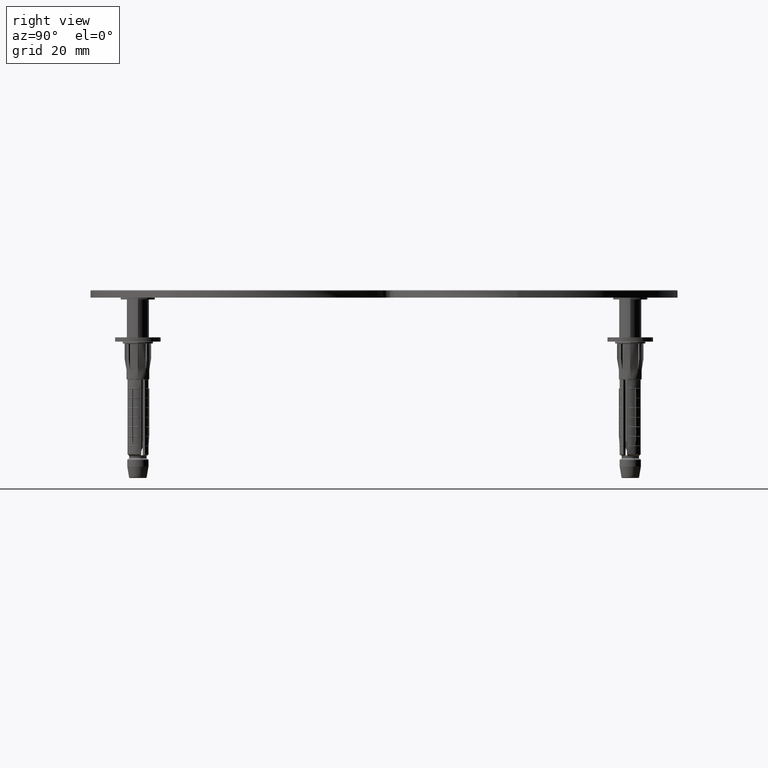
[diagram: clean part render]
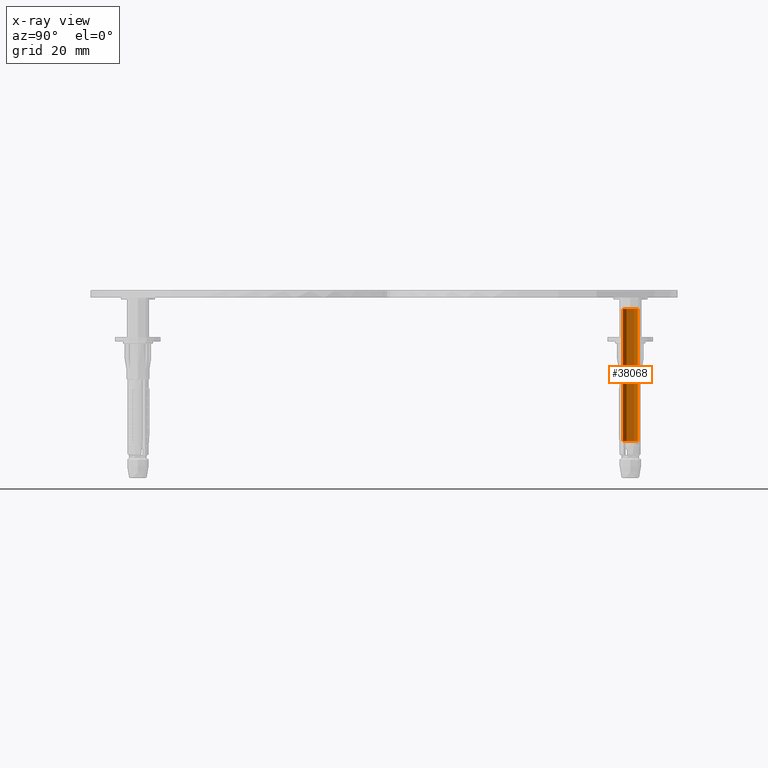
[diagram: x-ray — body ghosted, one internal face saturated and labeled with its STEP entity id]
A machine part, right view, then the same camera in x-ray: the body is ghosted and one INTERNAL B-rep face — a face not visible from any outside direction — is saturated and labeled: STEP entity #38068.
In plain terms, the highlighted cylindrical surface (edge-blend (fillet) strip) has radius 2 mm, axis along (0, 0, -1).
Its self-contained STEP definition (entity closure, byte-faithful):
#716 = ORIENTED_EDGE ( 'NONE', *, *, #30858, .F. ) ;
#2610 = EDGE_CURVE ( 'NONE', #13324, #20582, #31544, .T. ) ;
#5374 = CIRCLE ( 'NONE', #8484, 1.999999999999995781 ) ;
#5933 = EDGE_CURVE ( 'NONE', #16065, #14078, #36685, .T. ) ;
#6712 = DIRECTION ( 'NONE',  ( 1.314919014442269209E-41, 1.000000000000000000, 0.000000000000000000 ) ) ;
#7012 = DIRECTION ( 'NONE',  ( -2.548694494986879549E-32, -1.530808498934207841E-17, -1.000000000000000000 ) ) ;
#8484 = AXIS2_PLACEMENT_3D ( 'NONE', #15815, #22179, #6712 ) ;
#8673 = DIRECTION ( 'NONE',  ( -1.314919014442268700E-41, -1.000000000000000000, 0.000000000000000000 ) ) ;
#8689 = DIRECTION ( 'NONE',  ( -2.548694494986879549E-32, -1.530808498934207841E-17, -1.000000000000000000 ) ) ;
#11841 = CIRCLE ( 'NONE', #25843, 1.999999999999995781 ) ;
#13324 = VERTEX_POINT ( 'NONE', #24833 ) ;
#14078 = VERTEX_POINT ( 'NONE', #18627 ) ;
#14585 = CARTESIAN_POINT ( 'NONE',  ( 2.449293598294697047E-16, -1.999999999999981792, -39.99999999999988631 ) ) ;
#15815 = CARTESIAN_POINT ( 'NONE',  ( 0.000000000000000000, 1.387778780781445676E-14, -35.40999999999990422 ) ) ;
#16065 = VERTEX_POINT ( 'NONE', #39272 ) ;
#18627 = CARTESIAN_POINT ( 'NONE',  ( 2.629838028884532811E-41, 2.000000000000009770, -35.40999999999990422 ) ) ;
#20582 = VERTEX_POINT ( 'NONE', #28367 ) ;
#22179 = DIRECTION ( 'NONE',  ( -2.548694494986879549E-32, -1.530808498934207841E-17, -1.000000000000000000 ) ) ;
#22331 = EDGE_LOOP ( 'NONE', ( #34639, #26449, #716, #39191 ) ) ;
#22495 = CARTESIAN_POINT ( 'NONE',  ( 2.629838028884532811E-41, 2.000000000000009770, -39.99999999999988631 ) ) ;
#24833 = CARTESIAN_POINT ( 'NONE',  ( 2.449293598294719726E-16, -1.999999999999995781, -0.5000000000000073275 ) ) ;
#25843 = AXIS2_PLACEMENT_3D ( 'NONE', #39314, #39454, #8673 ) ;
#26449 = ORIENTED_EDGE ( 'NONE', *, *, #2610, .T. ) ;
#28367 = CARTESIAN_POINT ( 'NONE',  ( 2.449293598294702963E-16, -1.999999999999981792, -35.40999999999990422 ) ) ;
#28426 = DIRECTION ( 'NONE',  ( 1.314919014442269209E-41, 1.000000000000000000, 0.000000000000000000 ) ) ;
#29645 = VECTOR ( 'NONE', #8689, 1000.000000000000000 ) ;
#30858 = EDGE_CURVE ( 'NONE', #14078, #20582, #5374, .T. ) ;
#31544 = LINE ( 'NONE', #14585, #29645 ) ;
#31893 = FACE_OUTER_BOUND ( 'NONE', #22331, .T. ) ;
#34639 = ORIENTED_EDGE ( 'NONE', *, *, #35561, .T. ) ;
#35235 = VECTOR ( 'NONE', #7012, 1000.000000000000000 ) ;
#35561 = EDGE_CURVE ( 'NONE', #16065, #13324, #11841, .T. ) ;
#36256 = CYLINDRICAL_SURFACE ( 'NONE', #39265, 1.999999999999995781 ) ;
#36685 = LINE ( 'NONE', #22495, #35235 ) ;
#37567 = CARTESIAN_POINT ( 'NONE',  ( 0.000000000000000000, 1.387778780781445676E-14, -39.99999999999988631 ) ) ;
#37696 = DIRECTION ( 'NONE',  ( -2.548694494986879549E-32, -1.530808498934207841E-17, -1.000000000000000000 ) ) ;
#38068 = ADVANCED_FACE ( 'NONE', ( #31893 ), #36256, .T. ) ;
#39191 = ORIENTED_EDGE ( 'NONE', *, *, #5933, .F. ) ;
#39265 = AXIS2_PLACEMENT_3D ( 'NONE', #37567, #37696, #28426 ) ;
#39272 = CARTESIAN_POINT ( 'NONE',  ( 5.618597014461522366E-31, 1.999999999999995781, -0.5000000000000073275 ) ) ;
#39314 = CARTESIAN_POINT ( 'NONE',  ( 0.000000000000000000, 0.000000000000000000, -0.5000000000000073275 ) ) ;
#39454 = DIRECTION ( 'NONE',  ( -2.548694494986879549E-32, -1.530808498934202910E-17, -1.000000000000000000 ) ) ;